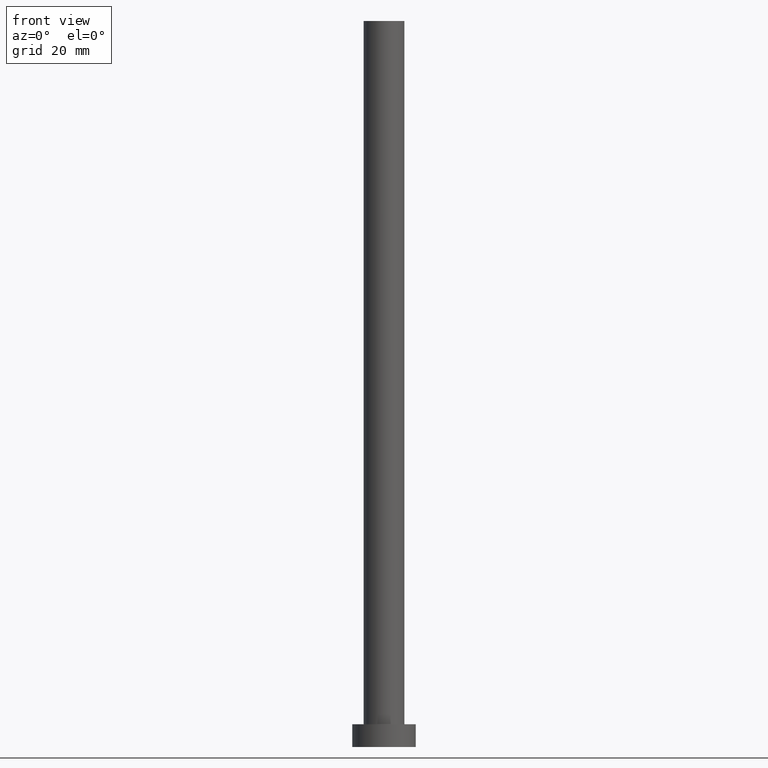
[diagram: clean part render]
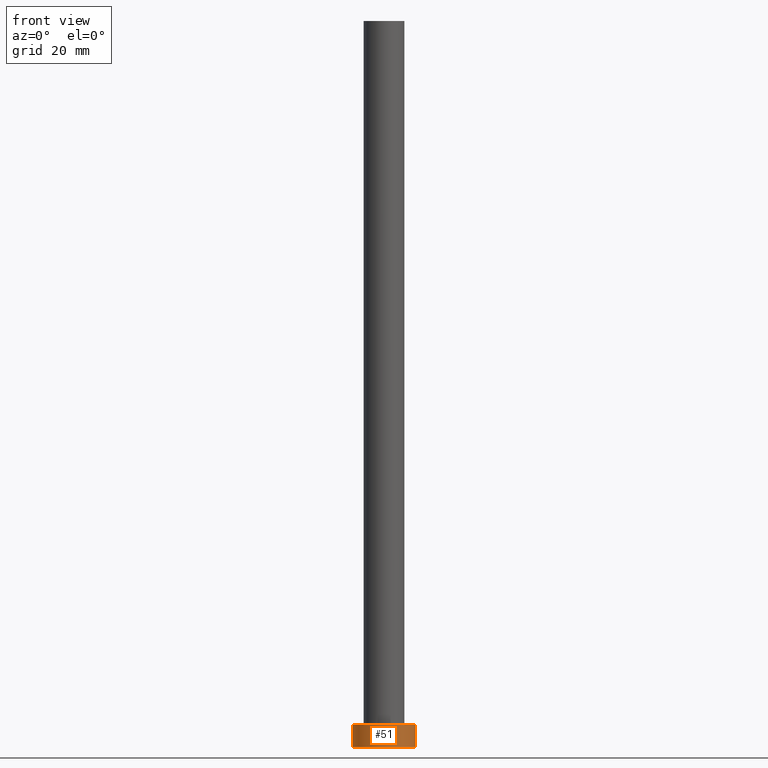
[diagram: same view with one face highlighted and labeled with its STEP entity id]
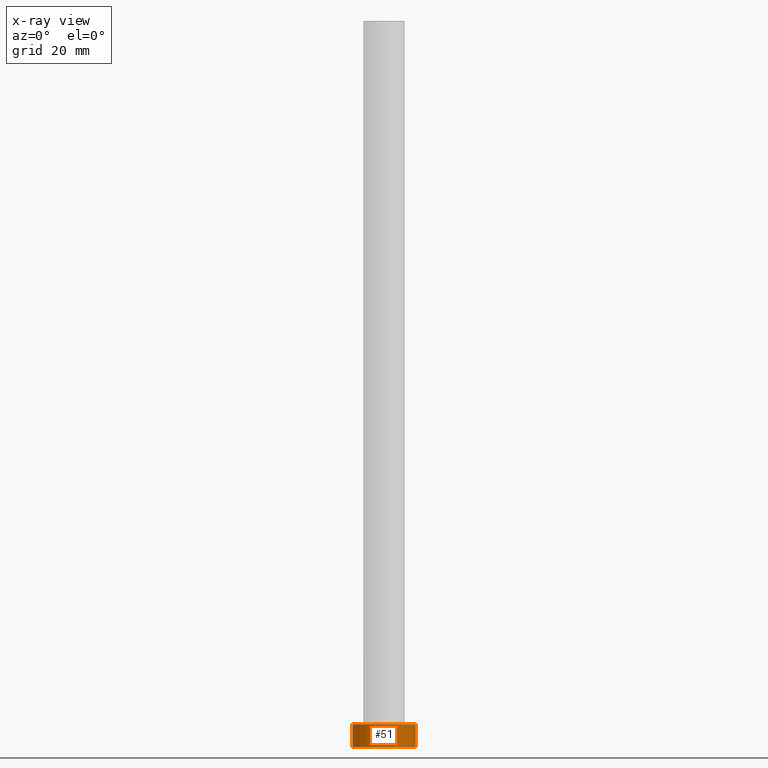
[diagram: x-ray of the same camera — body ghosted, the highlighted face saturated]
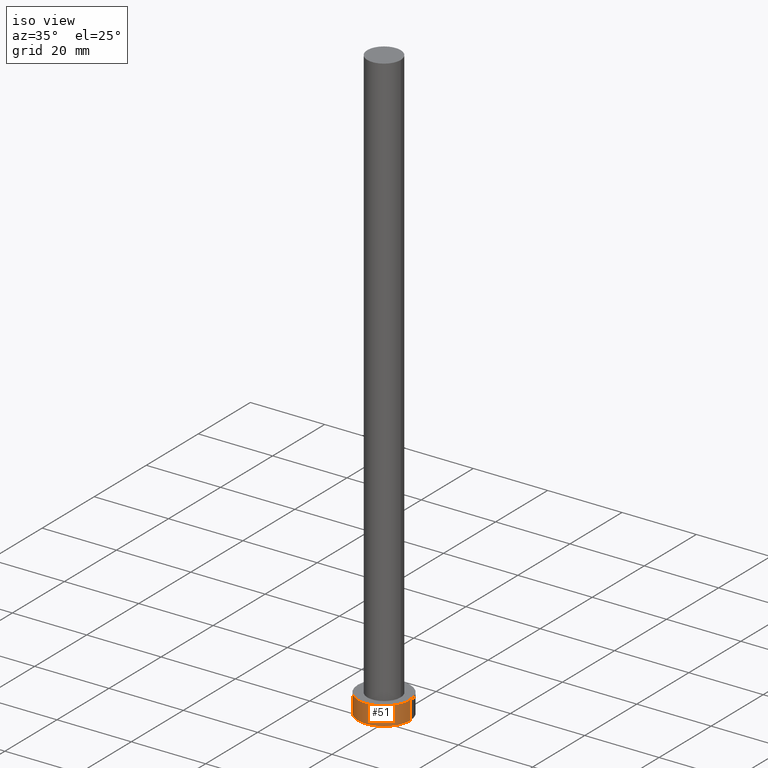
[diagram: same view with one face highlighted and labeled with its STEP entity id]
A machine part, front view. The second image highlights one B-rep face of the part: STEP entity #51.
The next image is the same camera in x-ray: the body ghosted, the highlighted face saturated — about 0% of this face is hidden behind the body in this view.
A second angle (iso view) of the same face is appended — the face is thin or edge-on in the first view.
In plain terms, the highlighted cylindrical surface (edge-blend (fillet) strip) has radius 7 mm, axis along (-0, -0, -1).
Its self-contained STEP definition (entity closure, byte-faithful):
#1 = CARTESIAN_POINT ( 'NONE',  ( -7.000000000000000000, 0.000000000000000000, 5.000000000000000000 ) ) ;
#2 = CARTESIAN_POINT ( 'NONE',  ( 7.000000000000000000, 8.572527594031473190E-16, 5.000000000000000000 ) ) ;
#4 = ORIENTED_EDGE ( 'NONE', *, *, #98, .F. ) ;
#5 = VERTEX_POINT ( 'NONE', #2 ) ;
#13 = DIRECTION ( 'NONE',  ( -0.000000000000000000, -0.000000000000000000, -1.000000000000000000 ) ) ;
#26 = VECTOR ( 'NONE', #233, 1000.000000000000000 ) ;
#27 = ORIENTED_EDGE ( 'NONE', *, *, #223, .T. ) ;
#36 = CARTESIAN_POINT ( 'NONE',  ( 7.000000000000000000, 8.572527594031473190E-16, 5.000000000000000000 ) ) ;
#51 = ADVANCED_FACE ( 'NONE', ( #68 ), #195, .T. ) ;
#53 = VECTOR ( 'NONE', #230, 1000.000000000000000 ) ;
#57 = DIRECTION ( 'NONE',  ( 0.000000000000000000, 0.000000000000000000, 1.000000000000000000 ) ) ;
#59 = EDGE_CURVE ( 'NONE', #104, #158, #145, .T. ) ;
#66 = CARTESIAN_POINT ( 'NONE',  ( -7.000000000000000000, 0.000000000000000000, 5.000000000000000000 ) ) ;
#68 = FACE_OUTER_BOUND ( 'NONE', #120, .T. ) ;
#79 = DIRECTION ( 'NONE',  ( -1.000000000000000000, 0.000000000000000000, 0.000000000000000000 ) ) ;
#82 = CARTESIAN_POINT ( 'NONE',  ( -7.000000000000000000, 0.000000000000000000, 0.000000000000000000 ) ) ;
#89 = EDGE_CURVE ( 'NONE', #5, #158, #207, .T. ) ;
#98 = EDGE_CURVE ( 'NONE', #153, #5, #141, .T. ) ;
#104 = VERTEX_POINT ( 'NONE', #82 ) ;
#117 = CARTESIAN_POINT ( 'NONE',  ( 7.000000000000000000, 8.572527594031473190E-16, 0.000000000000000000 ) ) ;
#120 = EDGE_LOOP ( 'NONE', ( #182, #4, #27, #122 ) ) ;
#122 = ORIENTED_EDGE ( 'NONE', *, *, #59, .T. ) ;
#141 = CIRCLE ( 'NONE', #177, 7.000000000000000000 ) ;
#145 = CIRCLE ( 'NONE', #254, 7.000000000000000000 ) ;
#153 = VERTEX_POINT ( 'NONE', #66 ) ;
#158 = VERTEX_POINT ( 'NONE', #117 ) ;
#165 = CARTESIAN_POINT ( 'NONE',  ( 0.000000000000000000, 0.000000000000000000, 5.000000000000000000 ) ) ;
#171 = DIRECTION ( 'NONE',  ( 1.000000000000000000, 0.000000000000000000, 0.000000000000000000 ) ) ;
#174 = LINE ( 'NONE', #1, #26 ) ;
#177 = AXIS2_PLACEMENT_3D ( 'NONE', #165, #228, #171 ) ;
#182 = ORIENTED_EDGE ( 'NONE', *, *, #89, .F. ) ;
#195 = CYLINDRICAL_SURFACE ( 'NONE', #205, 7.000000000000000000 ) ;
#205 = AXIS2_PLACEMENT_3D ( 'NONE', #246, #13, #79 ) ;
#207 = LINE ( 'NONE', #36, #53 ) ;
#209 = DIRECTION ( 'NONE',  ( 1.000000000000000000, 0.000000000000000000, 0.000000000000000000 ) ) ;
#223 = EDGE_CURVE ( 'NONE', #153, #104, #174, .T. ) ;
#226 = CARTESIAN_POINT ( 'NONE',  ( 0.000000000000000000, 0.000000000000000000, 0.000000000000000000 ) ) ;
#228 = DIRECTION ( 'NONE',  ( 0.000000000000000000, 0.000000000000000000, 1.000000000000000000 ) ) ;
#230 = DIRECTION ( 'NONE',  ( -0.000000000000000000, -0.000000000000000000, -1.000000000000000000 ) ) ;
#233 = DIRECTION ( 'NONE',  ( -0.000000000000000000, -0.000000000000000000, -1.000000000000000000 ) ) ;
#246 = CARTESIAN_POINT ( 'NONE',  ( 0.000000000000000000, 0.000000000000000000, 5.000000000000000000 ) ) ;
#254 = AXIS2_PLACEMENT_3D ( 'NONE', #226, #57, #209 ) ;